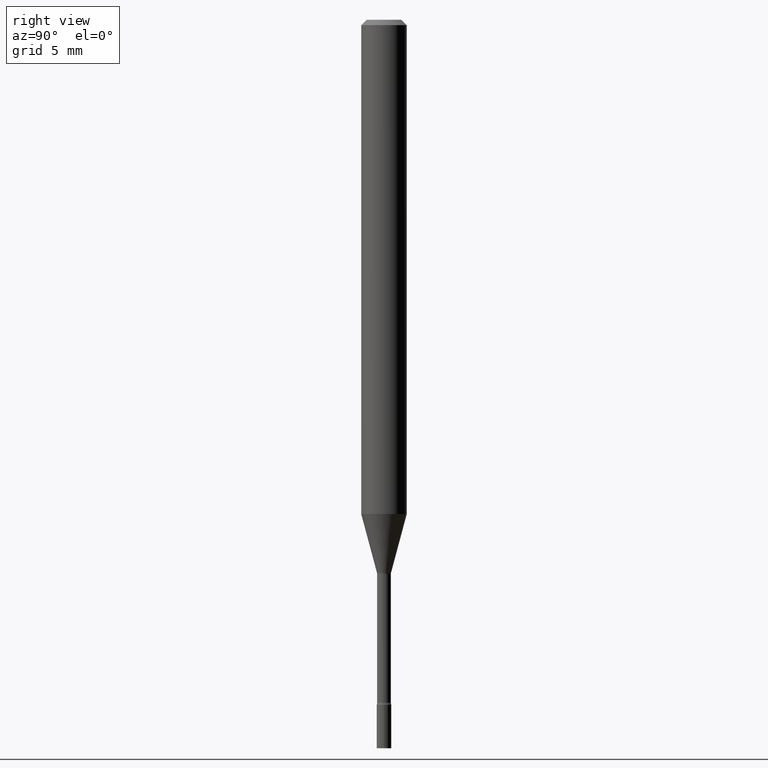
[diagram: clean part render]
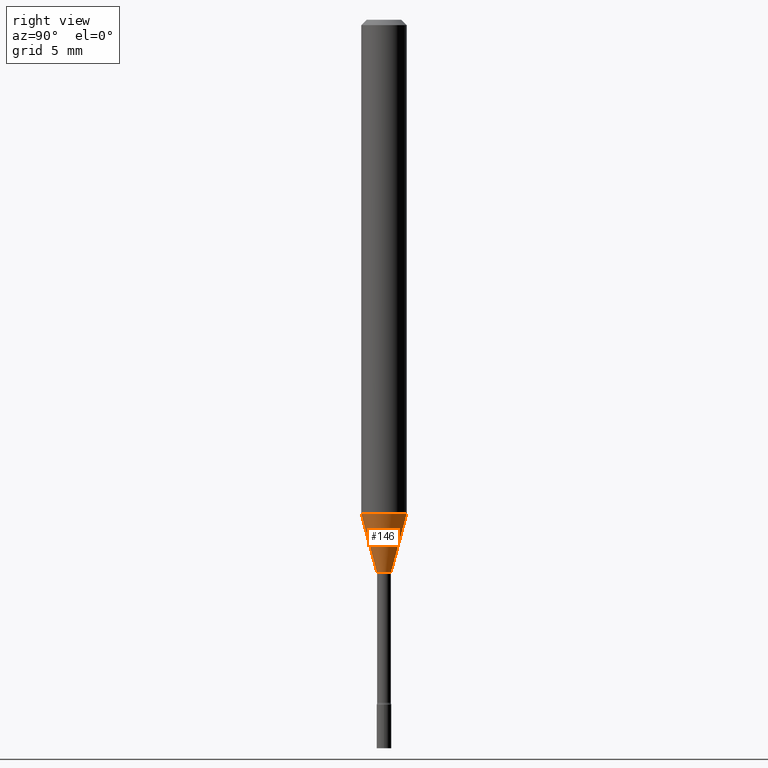
[diagram: same view with one face highlighted and labeled with its STEP entity id]
A machine part, right view. The second image highlights one B-rep face of the part: STEP entity #146.
In plain terms, the highlighted conical surface has half-angle 15 deg.
Its self-contained STEP definition (entity closure, byte-faithful):
#23 = VECTOR ( 'NONE', #168, 39.37007874015748143 ) ;
#32 = CARTESIAN_POINT ( 'NONE',  ( 1.372137078140354813E-16, 0.01931111260565867432, -1.518092501787273063 ) ) ;
#33 = ORIENTED_EDGE ( 'NONE', *, *, #98, .F. ) ;
#58 = VERTEX_POINT ( 'NONE', #461 ) ;
#70 = EDGE_LOOP ( 'NONE', ( #220, #308, #33, #424 ) ) ;
#75 = AXIS2_PLACEMENT_3D ( 'NONE', #82, #361, #282 ) ;
#82 = CARTESIAN_POINT ( 'NONE',  ( 3.318328816500207718E-29, -4.737553240931613222E-15, -1.356909379709240193 ) ) ;
#98 = EDGE_CURVE ( 'NONE', #58, #385, #173, .T. ) ;
#113 = EDGE_CURVE ( 'NONE', #129, #58, #290, .T. ) ;
#129 = VERTEX_POINT ( 'NONE', #159 ) ;
#130 = AXIS2_PLACEMENT_3D ( 'NONE', #502, #298, #314 ) ;
#146 = ADVANCED_FACE ( 'NONE', ( #506 ), #262, .T. ) ;
#159 = CARTESIAN_POINT ( 'NONE',  ( -1.348487785899111910E-16, -0.01931111260566927695, -1.518092501787273063 ) ) ;
#168 = DIRECTION ( 'NONE',  ( -1.807323732225327378E-15, -0.2588190451025177974, 0.9659258262890690894 ) ) ;
#173 = CIRCLE ( 'NONE', #75, 0.06250000000000000000 ) ;
#175 = DIRECTION ( 'NONE',  ( -2.445505106030929007E-29, 3.491429355397911828E-15, 1.000000000000000000 ) ) ;
#213 = CARTESIAN_POINT ( 'NONE',  ( 3.712502964548043038E-29, -5.300312724949541931E-15, -1.518092501787273063 ) ) ;
#220 = ORIENTED_EDGE ( 'NONE', *, *, #356, .T. ) ;
#226 = LINE ( 'NONE', #32, #509 ) ;
#229 = DIRECTION ( 'NONE',  ( 1.839019923739597160E-15, 0.2588190451025245142, 0.9659258262890670910 ) ) ;
#261 = VERTEX_POINT ( 'NONE', #287 ) ;
#262 = CONICAL_SURFACE ( 'NONE', #130, 0.01931111260566397564, 0.2617993877991498519 ) ;
#265 = CARTESIAN_POINT ( 'NONE',  ( 4.440892098500955511E-16, 0.06249999999999524686, -1.356909379709240415 ) ) ;
#282 = DIRECTION ( 'NONE',  ( -6.982962677686265922E-15, -1.000000000000000000, 4.370956789862821150E-15 ) ) ;
#287 = CARTESIAN_POINT ( 'NONE',  ( 2.906514588320657258E-16, 0.01931111260565867432, -1.518092501787273063 ) ) ;
#290 = LINE ( 'NONE', #458, #23 ) ;
#298 = DIRECTION ( 'NONE',  ( -2.445505106030929007E-29, 3.491429355397911828E-15, 1.000000000000000000 ) ) ;
#302 = DIRECTION ( 'NONE',  ( -6.982962677686265922E-15, -1.000000000000000000, 0.000000000000000000 ) ) ;
#308 = ORIENTED_EDGE ( 'NONE', *, *, #451, .T. ) ;
#314 = DIRECTION ( 'NONE',  ( -6.982962677686265922E-15, -1.000000000000000000, 0.000000000000000000 ) ) ;
#356 = EDGE_CURVE ( 'NONE', #129, #261, #429, .T. ) ;
#359 = AXIS2_PLACEMENT_3D ( 'NONE', #213, #175, #302 ) ;
#361 = DIRECTION ( 'NONE',  ( -2.445505106030929007E-29, 3.491429355397911828E-15, 1.000000000000000000 ) ) ;
#385 = VERTEX_POINT ( 'NONE', #265 ) ;
#424 = ORIENTED_EDGE ( 'NONE', *, *, #113, .F. ) ;
#429 = CIRCLE ( 'NONE', #359, 0.01931111260566397564 ) ;
#451 = EDGE_CURVE ( 'NONE', #261, #385, #226, .T. ) ;
#458 = CARTESIAN_POINT ( 'NONE',  ( -1.348487785899111910E-16, -0.01931111260566927695, -1.518092501787273063 ) ) ;
#461 = CARTESIAN_POINT ( 'NONE',  ( -4.364351673553586359E-16, -0.06250000000000476008, -1.356909379709239971 ) ) ;
#502 = CARTESIAN_POINT ( 'NONE',  ( 3.712502964548043038E-29, -5.300312724949541931E-15, -1.518092501787273063 ) ) ;
#506 = FACE_OUTER_BOUND ( 'NONE', #70, .T. ) ;
#509 = VECTOR ( 'NONE', #229, 39.37007874015748854 ) ;